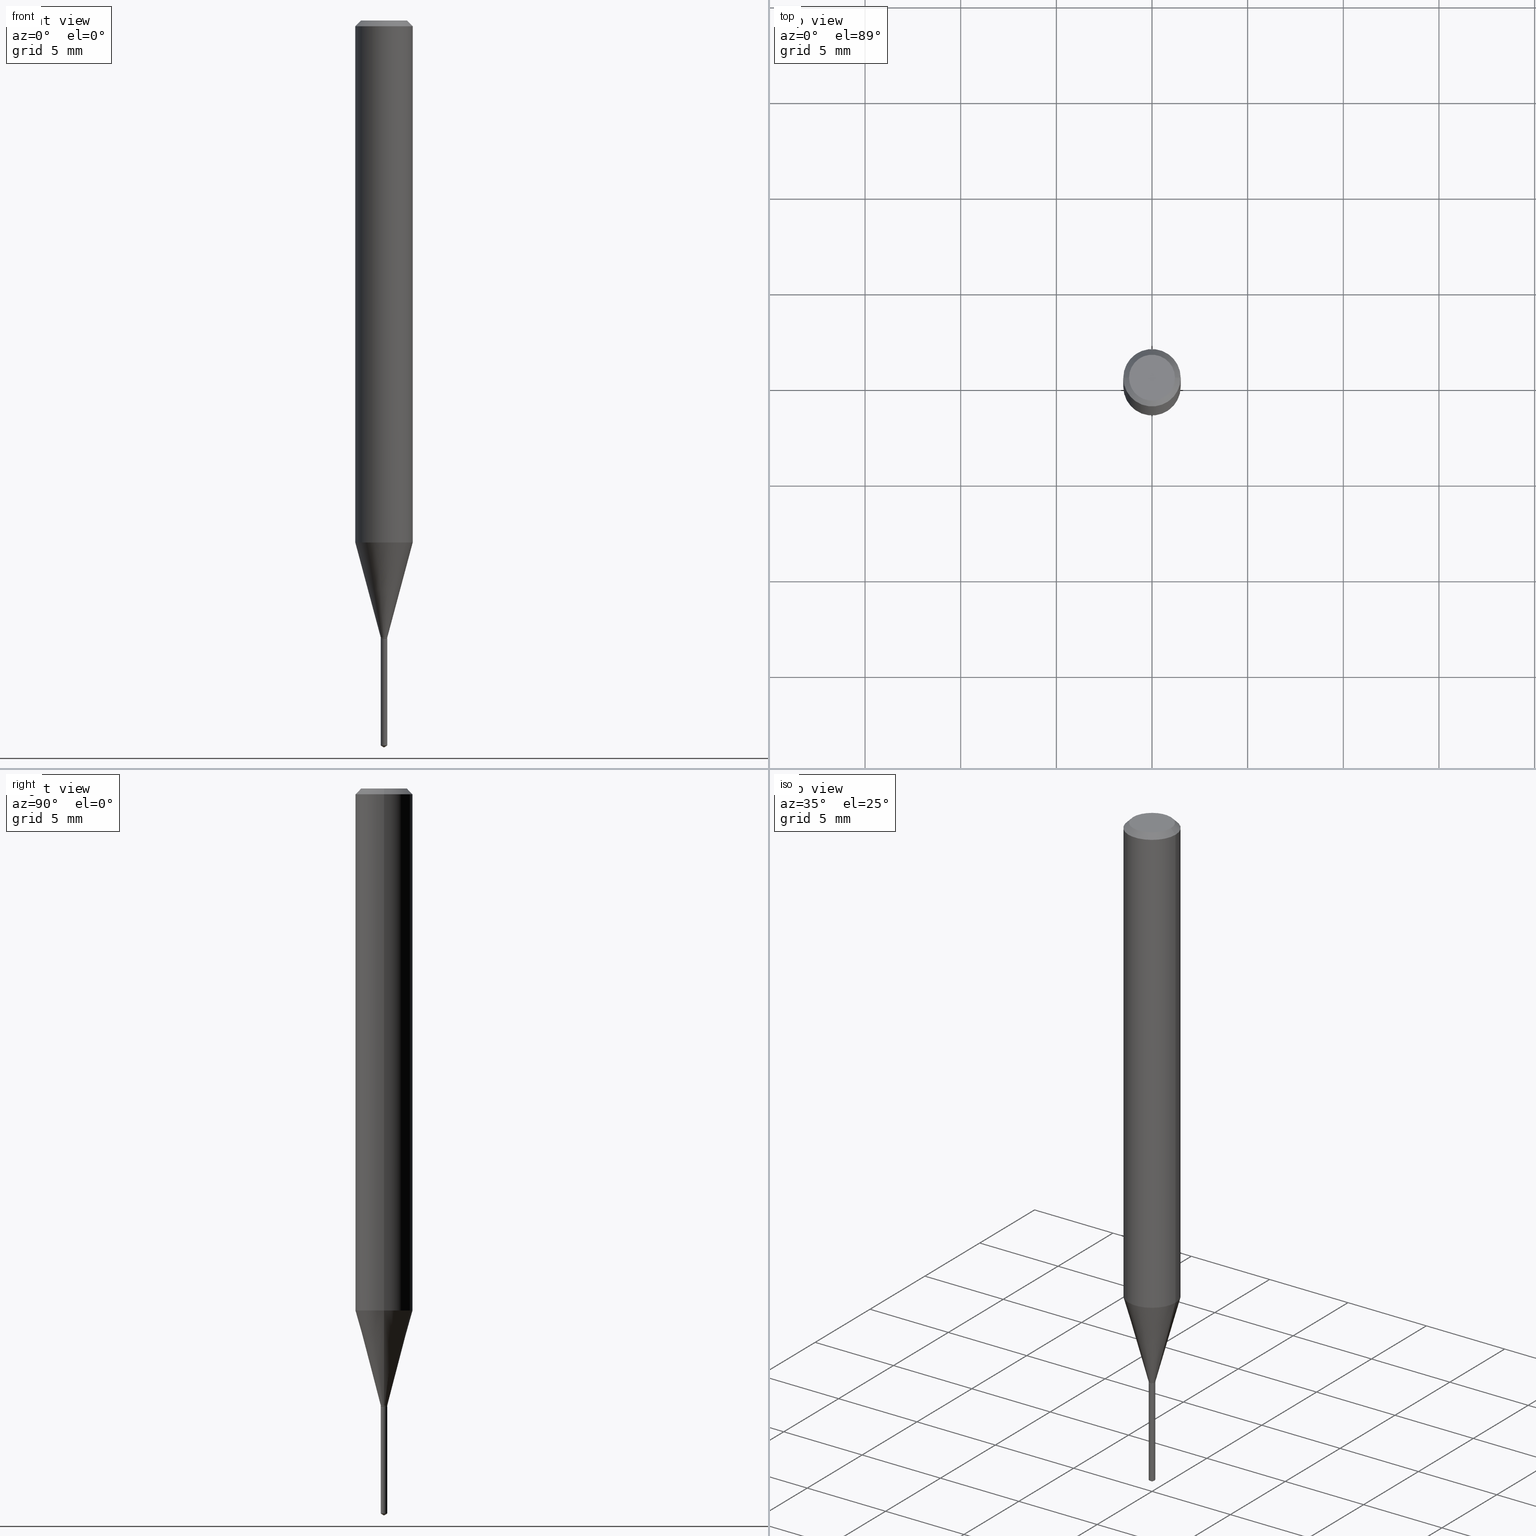
[diagram: canonical four-view strip — front | top / right | iso, engineering-drawing reading convention]
A machine part, canonical four-view strip (front | top / right | iso — engineering-drawing reading convention). The complete STEP part file that produces these views, byte-faithful:
ISO-10303-21;
HEADER;
FILE_DESCRIPTION (( 'STEP AP203' ),
    '1' );
FILE_NAME ('07753.STEP',
    '2024-04-24T02:18:31',
    ( '' ),
    ( '' ),
    'SwSTEP 2.0',
    'SolidWorks 2023',
    '' );
FILE_SCHEMA (( 'CONFIG_CONTROL_DESIGN' ));
ENDSEC;

DATA;
#1 = EDGE_LOOP ( 'NONE', ( #457, #26, #36 ) ) ;
#2 = DIRECTION ( 'NONE',  ( 1.000000000000000000, -6.982962677686266711E-15, 4.876176775795936353E-29 ) ) ;
#3 = CARTESIAN_POINT ( 'NONE',  ( 3.109902680825639250E-29, -4.440116818606829671E-15, -1.271700000000000275 ) ) ;
#4 = CARTESIAN_POINT ( 'NONE',  ( -0.04724000000000000421, 3.504923541997677355E-16, -3.380025165670481712E-19 ) ) ;
#5 = APPROVAL ( #239, 'UNSPECIFIED' ) ;
#6 = CLOSED_SHELL ( 'NONE', ( #323, #123, #302, #236, #9 ) ) ;
#7 = DIRECTION ( 'NONE',  ( -2.445468806185136597E-29, 3.491481338843145583E-15, 1.000000000000000000 ) ) ;
#8 = FACE_OUTER_BOUND ( 'NONE', #127, .T. ) ;
#9 = ADVANCED_FACE ( 'NONE', ( #180 ), #264, .F. ) ;
#10 = EDGE_LOOP ( 'NONE', ( #118, #300, #185, #230 ) ) ;
#11 = PERSON ( 'UNSPECIFIED', 'UNSPECIFIED', 'UNSPECIFIED', ('UNSPECIFIED'), ('UNSPECIFIED'), ('UNSPECIFIED') ) ;
#12 = DIRECTION ( 'NONE',  ( -6.982962677686265922E-15, -1.000000000000000000, 0.000000000000000000 ) ) ;
#13 = VECTOR ( 'NONE', #115, 39.37007874015748143 ) ;
#14 = VERTEX_POINT ( 'NONE', #64 ) ;
#15 = DIRECTION ( 'NONE',  ( -2.438088387897960049E-29, 3.491481338843145188E-15, 1.000000000000000000 ) ) ;
#16 = ORIENTED_EDGE ( 'NONE', *, *, #360, .F. ) ;
#17 =( NAMED_UNIT ( * ) SI_UNIT ( $, .STERADIAN. ) SOLID_ANGLE_UNIT ( ) );
#18 = LINE ( 'NONE', #356, #466 ) ;
#19 = ORIENTED_EDGE ( 'NONE', *, *, #462, .T. ) ;
#20 = PLANE ( 'NONE',  #371 ) ;
#21 = CARTESIAN_POINT ( 'NONE',  ( 0.006199999999999999782, -4.483411187208483748E-15, -1.271700000000000275 ) ) ;
#22 = CONICAL_SURFACE ( 'NONE', #47, 65.52281426576747947, 1.029744258676648094 ) ;
#23 = APPROVAL_PERSON_ORGANIZATION ( #28, #5, #352 ) ;
#24 = CARTESIAN_POINT ( 'NONE',  ( 2.888098660104663766E-31, -4.123439461173779647E-17, -0.01181000000000007044 ) ) ;
#25 = EDGE_CURVE ( 'NONE', #489, #381, #96, .T. ) ;
#26 = ORIENTED_EDGE ( 'NONE', *, *, #142, .T. ) ;
#27 = CARTESIAN_POINT ( 'NONE',  ( 4.760636329596319888E-17, 0.006699999999994791719, -1.492074233852515253 ) ) ;
#28 = PERSON_AND_ORGANIZATION ( #11, #487 ) ;
#29 = AXIS2_PLACEMENT_3D ( 'NONE', #423, #234, #203 ) ;
#30 = EDGE_CURVE ( 'NONE', #318, #131, #321, .T. ) ;
#31 = FACE_OUTER_BOUND ( 'NONE', #178, .T. ) ;
#32 = VECTOR ( 'NONE', #186, 39.37007874015747433 ) ;
#33 = AXIS2_PLACEMENT_3D ( 'NONE', #281, #112, #439 ) ;
#34 = CARTESIAN_POINT ( 'NONE',  ( -0.006700000000000000226, -4.388146103637346948E-15, -1.269699999999999829 ) ) ;
#35 = EDGE_CURVE ( 'NONE', #231, #297, #266, .T. ) ;
#36 = ORIENTED_EDGE ( 'NONE', *, *, #451, .F. ) ;
#37 = LINE ( 'NONE', #153, #32 ) ;
#38 = ORIENTED_EDGE ( 'NONE', *, *, #420, .T. ) ;
#39 = CYLINDRICAL_SURFACE ( 'NONE', #194, 0.006700000000000000226 ) ;
#40 = CARTESIAN_POINT ( 'NONE',  ( -0.05905000000000006771, 4.195754854663396409E-16, -2.904631170795525045E-30 ) ) ;
#41 = DIRECTION ( 'NONE',  ( -6.982962677686265922E-15, -1.000000000000000000, 0.000000000000000000 ) ) ;
#42 = VECTOR ( 'NONE', #320, 39.37007874015748143 ) ;
#43 = CARTESIAN_POINT ( 'NONE',  ( 3.109902680825638129E-29, -4.440116818606828093E-15, -1.271700000000000053 ) ) ;
#44 = CC_DESIGN_PERSON_AND_ORGANIZATION_ASSIGNMENT ( #388, #483, ( #121 ) ) ;
#45 = CARTESIAN_POINT ( 'NONE',  ( 0.006700000000000000226, -4.479919705869639163E-15, -1.269699999999999829 ) ) ;
#46 = ORIENTED_EDGE ( 'NONE', *, *, #85, .T. ) ;
#47 = AXIS2_PLACEMENT_3D ( 'NONE', #240, #71, #441 ) ;
#48 = CYLINDRICAL_SURFACE ( 'NONE', #277, 0.006700000000000000226 ) ;
#49 = CONICAL_SURFACE ( 'NONE', #418, 0.006700000000000000226, 0.2617993877991500740 ) ;
#50 = VERTEX_POINT ( 'NONE', #101 ) ;
#51 = EDGE_CURVE ( 'NONE', #131, #192, #169, .T. ) ;
#52 = DIRECTION ( 'NONE',  ( -2.445468806185136597E-29, 3.491481338843145583E-15, 1.000000000000000000 ) ) ;
#53 = EDGE_LOOP ( 'NONE', ( #346, #333, #465, #406 ) ) ;
#54 = CARTESIAN_POINT ( 'NONE',  ( -9.261893952565592859E-28, 1.322372839174148049E-13, 37.87397874015748300 ) ) ;
#55 = EDGE_CURVE ( 'NONE', #470, #381, #386, .T. ) ;
#56 = DESIGN_CONTEXT ( 'detailed design', #426, 'design' ) ;
#57 = VERTEX_POINT ( 'NONE', #106 ) ;
#58 = AXIS2_PLACEMENT_3D ( 'NONE', #154, #89, #366 ) ;
#59 = CARTESIAN_POINT ( 'NONE',  ( 4.132873053354867254E-48, -5.900647395337818946E-34, -1.690012582823346072E-19 ) ) ;
#60 = CARTESIAN_POINT ( 'NONE',  ( 0.000000000000000000, 0.000000000000000000, 0.000000000000000000 ) ) ;
#61 = DIRECTION ( 'NONE',  ( 1.000000000000000000, -6.982962677686318775E-15, 0.000000000000000000 ) ) ;
#62 = APPROVAL_DATE_TIME ( #246, #206 ) ;
#63 = CYLINDRICAL_SURFACE ( 'NONE', #145, 0.006700000000000000226 ) ;
#64 = CARTESIAN_POINT ( 'NONE',  ( -4.678584994046688592E-17, -0.006700000000004440251, -1.271700000000000053 ) ) ;
#65 = CALENDAR_DATE ( 2024, 23, 4 ) ;
#66 = EDGE_CURVE ( 'NONE', #258, #57, #78, .T. ) ;
#67 = CALENDAR_DATE ( 2024, 23, 4 ) ;
#68 = ORIENTED_EDGE ( 'NONE', *, *, #51, .T. ) ;
#69 = VECTOR ( 'NONE', #308, 39.37007874015748854 ) ;
#70 = VECTOR ( 'NONE', #189, 39.37007874015748143 ) ;
#71 = DIRECTION ( 'NONE',  ( -2.445451076271118923E-29, 3.491506729089142946E-15, 1.000000000000000000 ) ) ;
#72 = DATE_TIME_ROLE ( 'classification_date' ) ;
#73 = DIRECTION ( 'NONE',  ( -2.445468806185136597E-29, 3.491481338843145583E-15, 1.000000000000000000 ) ) ;
#74 = CARTESIAN_POINT ( 'NONE',  ( 2.888098660104663766E-31, -4.123439461173779647E-17, -0.01181000000000007044 ) ) ;
#75 = PERSON_AND_ORGANIZATION ( #11, #487 ) ;
#76 = ORIENTED_EDGE ( 'NONE', *, *, #85, .F. ) ;
#77 = CARTESIAN_POINT ( 'NONE',  ( 0.006700000000000000226, -4.678584994049799046E-17, 3.267038439783277072E-31 ) ) ;
#78 = CIRCLE ( 'NONE', #29, 0.05905000000000013016 ) ;
#79 = DIRECTION ( 'NONE',  ( -2.445451076271118923E-29, 3.491506729089142946E-15, 1.000000000000000000 ) ) ;
#80 = CARTESIAN_POINT ( 'NONE',  ( 0.006700000000000000226, -4.485156927877905251E-15, -1.271200000000000108 ) ) ;
#81 = ADVANCED_FACE ( 'NONE', ( #477 ), #347, .T. ) ;
#82 = EDGE_LOOP ( 'NONE', ( #225, #433, #95, #443 ) ) ;
#83 = EDGE_CURVE ( 'NONE', #297, #287, #261, .T. ) ;
#84 = CARTESIAN_POINT ( 'NONE',  ( 3.109902680825638129E-29, -4.440116818606828093E-15, -1.271700000000000053 ) ) ;
#85 = EDGE_CURVE ( 'NONE', #381, #57, #100, .T. ) ;
#86 = CIRCLE ( 'NONE', #357, 0.006700000000000000226 ) ;
#87 = FACE_OUTER_BOUND ( 'NONE', #331, .T. ) ;
#88 = ORIENTED_EDGE ( 'NONE', *, *, #417, .T. ) ;
#89 = DIRECTION ( 'NONE',  ( -2.445468806185136597E-29, 3.491481338843145583E-15, 1.000000000000000000 ) ) ;
#90 = ORIENTED_EDGE ( 'NONE', *, *, #210, .T. ) ;
#91 = VECTOR ( 'NONE', #345, 39.37007874015748854 ) ;
#92 = AXIS2_PLACEMENT_3D ( 'NONE', #276, #79, #216 ) ;
#93 = CC_DESIGN_DATE_AND_TIME_ASSIGNMENT ( #171, #72, ( #121 ) ) ;
#94 = EDGE_LOOP ( 'NONE', ( #111, #88 ) ) ;
#95 = ORIENTED_EDGE ( 'NONE', *, *, #172, .T. ) ;
#96 = LINE ( 'NONE', #272, #227 ) ;
#97 = PERSON_AND_ORGANIZATION ( #11, #487 ) ;
#98 = PRODUCT_DEFINITION_SHAPE ( 'NONE', 'NONE',  #288 ) ;
#99 = AXIS2_PLACEMENT_3D ( 'NONE', #447, #328, #2 ) ;
#100 = LINE ( 'NONE', #167, #207 ) ;
#101 = CARTESIAN_POINT ( 'NONE',  ( -4.678584994046150564E-17, -0.006700000000005211336, -1.492074233852515253 ) ) ;
#102 = PERSON_AND_ORGANIZATION_ROLE ( 'design_owner' ) ;
#103 = ORIENTED_EDGE ( 'NONE', *, *, #166, .T. ) ;
#104 = LINE ( 'NONE', #77, #137 ) ;
#105 = CARTESIAN_POINT ( 'NONE',  ( 3.105011743213267483E-29, -4.433133855929141290E-15, -1.269699999999999829 ) ) ;
#106 = CARTESIAN_POINT ( 'NONE',  ( -0.05905000000000013710, -3.331417676437672997E-15, -1.074327140223769073 ) ) ;
#107 = AXIS2_PLACEMENT_3D ( 'NONE', #304, #52, #196 ) ;
#108 = CARTESIAN_POINT ( 'NONE',  ( 3.105011743213267483E-29, -4.433133855929141290E-15, -1.269699999999999829 ) ) ;
#109 = DIRECTION ( 'NONE',  ( -2.445468806185136597E-29, 3.491481338843145583E-15, 1.000000000000000000 ) ) ;
#110 = APPROVAL_DATE_TIME ( #280, #5 ) ;
#111 = ORIENTED_EDGE ( 'NONE', *, *, #309, .T. ) ;
#112 = DIRECTION ( 'NONE',  ( 2.445468806185136597E-29, -3.491481338843145583E-15, -1.000000000000000000 ) ) ;
#113 = CARTESIAN_POINT ( 'NONE',  ( 3.658639355209220542E-29, -5.223643217390265926E-15, -1.496099999999999985 ) ) ;
#114 = ORIENTED_EDGE ( 'NONE', *, *, #223, .F. ) ;
#115 = DIRECTION ( 'NONE',  ( 6.090539988449756347E-15, 0.8571673007021107793, 0.5150380749100567090 ) ) ;
#116 = DIRECTION ( 'NONE',  ( -2.445451076271118643E-29, 3.491506729089142552E-15, 1.000000000000000000 ) ) ;
#117 = AXIS2_PLACEMENT_3D ( 'NONE', #84, #254, #296 ) ;
#118 = ORIENTED_EDGE ( 'NONE', *, *, #181, .F. ) ;
#119 = CARTESIAN_POINT ( 'NONE',  ( 0.000000000000000000, 0.000000000000000000, 0.000000000000000000 ) ) ;
#120 = AXIS2_PLACEMENT_3D ( 'NONE', #405, #213, #484 ) ;
#121 = SECURITY_CLASSIFICATION ( '', '', #125 ) ;
#122 = EDGE_LOOP ( 'NONE', ( #479, #390, #338 ) ) ;
#123 = ADVANCED_FACE ( 'NONE', ( #170 ), #151, .T. ) ;
#124 = EDGE_LOOP ( 'NONE', ( #303, #155 ) ) ;
#125 = SECURITY_CLASSIFICATION_LEVEL ( 'unclassified' ) ;
#126 =( LENGTH_UNIT ( ) NAMED_UNIT ( * ) SI_UNIT ( $, .METRE. ) );
#127 = EDGE_LOOP ( 'NONE', ( #269, #336 ) ) ;
#128 = CIRCLE ( 'NONE', #201, 0.006700000000000000226 ) ;
#129 = VERTEX_POINT ( 'NONE', #27 ) ;
#130 = ADVANCED_FACE ( 'NONE', ( #31 ), #173, .T. ) ;
#131 = VERTEX_POINT ( 'NONE', #139 ) ;
#132 = CC_DESIGN_PERSON_AND_ORGANIZATION_ASSIGNMENT ( #245, #102, ( #464 ) ) ;
#133 = DIRECTION ( 'NONE',  ( -2.445468806185136597E-29, 3.491481338843145583E-15, 1.000000000000000000 ) ) ;
#134 = ORIENTED_EDGE ( 'NONE', *, *, #35, .F. ) ;
#135 = VECTOR ( 'NONE', #212, 39.37007874015748143 ) ;
#136 = CARTESIAN_POINT ( 'NONE',  ( 0.05904999999999999832, -4.463468013801466955E-16, -0.01181000000000007044 ) ) ;
#137 = VECTOR ( 'NONE', #391, 39.37007874015748143 ) ;
#138 = PERSON_AND_ORGANIZATION ( #11, #487 ) ;
#139 = CARTESIAN_POINT ( 'NONE',  ( 0.006199999999999999782, -4.483411187208483748E-15, -1.271700000000000275 ) ) ;
#140 = APPROVAL_STATUS ( 'not_yet_approved' ) ;
#141 = VERTEX_POINT ( 'NONE', #392 ) ;
#142 = EDGE_CURVE ( 'NONE', #255, #50, #208, .T. ) ;
#143 = CARTESIAN_POINT ( 'NONE',  ( 3.109902680825638129E-29, -4.440116818606828093E-15, -1.271700000000000053 ) ) ;
#144 = APPLICATION_PROTOCOL_DEFINITION ( 'international standard', 'config_control_design', 1994, #179 ) ;
#145 = AXIS2_PLACEMENT_3D ( 'NONE', #60, #268, #235 ) ;
#146 = DIRECTION ( 'NONE',  ( 0.000000000000000000, 0.000000000000000000, 1.000000000000000000 ) ) ;
#147 = LINE ( 'NONE', #397, #42 ) ;
#148 = CARTESIAN_POINT ( 'NONE',  ( -0.05904999999999999832, -1.476538292791535222E-15, -0.01181000000000007044 ) ) ;
#149 = ORIENTED_EDGE ( 'NONE', *, *, #377, .F. ) ;
#150 = DIRECTION ( 'NONE',  ( -2.445468806185136597E-29, 3.491481338843145583E-15, 1.000000000000000000 ) ) ;
#151 = CONICAL_SURFACE ( 'NONE', #370, 65.52281426576747947, 1.029744258676648094 ) ;
#152 = CIRCLE ( 'NONE', #243, 0.006700000000000000226 ) ;
#153 = CARTESIAN_POINT ( 'NONE',  ( 0.006700000000000000226, -4.479919705869639163E-15, -1.269699999999999829 ) ) ;
#154 = CARTESIAN_POINT ( 'NONE',  ( 3.109902680825639250E-29, -4.440116818606829671E-15, -1.271700000000000275 ) ) ;
#155 = ORIENTED_EDGE ( 'NONE', *, *, #30, .F. ) ;
#156 = CYLINDRICAL_SURFACE ( 'NONE', #209, 0.05905000000000006771 ) ;
#157 = PRODUCT_DEFINITION_FORMATION_WITH_SPECIFIED_SOURCE ( 'ANY', '', #464, .NOT_KNOWN. ) ;
#158 = ORIENTED_EDGE ( 'NONE', *, *, #247, .T. ) ;
#159 = PERSON_AND_ORGANIZATION_ROLE ( 'creator' ) ;
#160 = ORIENTED_EDGE ( 'NONE', *, *, #83, .F. ) ;
#161 = EDGE_CURVE ( 'NONE', #131, #318, #424, .T. ) ;
#162 = ORIENTED_EDGE ( 'NONE', *, *, #384, .T. ) ;
#163 = CARTESIAN_POINT ( 'NONE',  ( -3.601823997254845853E-28, -6.047384413381397898E-14, -1.271700000000000053 ) ) ;
#164 = CIRCLE ( 'NONE', #184, 0.05904999999999999832 ) ;
#166 = EDGE_CURVE ( 'NONE', #192, #489, #128, .T. ) ;
#165 = APPROVAL_PERSON_ORGANIZATION ( #75, #206, #324 ) ;
#167 = CARTESIAN_POINT ( 'NONE',  ( -0.006700000000000000226, -4.385527492633215087E-15, -1.269699999999999829 ) ) ;
#168 = COORDINATED_UNIVERSAL_TIME_OFFSET ( 5, 0, .BEHIND. ) ;
#169 = LINE ( 'NONE', #21, #91 ) ;
#170 = FACE_OUTER_BOUND ( 'NONE', #122, .T. ) ;
#171 = DATE_AND_TIME ( #65, #221 ) ;
#172 = EDGE_CURVE ( 'NONE', #50, #14, #448, .T. ) ;
#173 = CONICAL_SURFACE ( 'NONE', #416, 0.006700000000000000226, 0.2617993877991500740 ) ;
#174 = DIRECTION ( 'NONE',  ( -2.445468806185136597E-29, 3.491481338843145583E-15, 1.000000000000000000 ) ) ;
#175 = AXIS2_PLACEMENT_3D ( 'NONE', #293, #374, #294 ) ;
#176 = APPLICATION_PROTOCOL_DEFINITION ( 'international standard', 'config_control_design', 1994, #426 ) ;
#177 = CC_DESIGN_PERSON_AND_ORGANIZATION_ASSIGNMENT ( #97, #301, ( #157 ) ) ;
#178 = EDGE_LOOP ( 'NONE', ( #76, #341, #90, #355 ) ) ;
#179 = APPLICATION_CONTEXT ( 'configuration controlled 3d designs of mechanical parts and assemblies' ) ;
#180 = FACE_OUTER_BOUND ( 'NONE', #94, .T. ) ;
#181 = EDGE_CURVE ( 'NONE', #231, #461, #267, .T. ) ;
#182 = COORDINATED_UNIVERSAL_TIME_OFFSET ( 5, 0, .BEHIND. ) ;
#183 = CARTESIAN_POINT ( 'NONE',  ( 0.05905000000000013710, -4.163337108021387805E-15, -1.074327140223769073 ) ) ;
#184 = AXIS2_PLACEMENT_3D ( 'NONE', #359, #217, #488 ) ;
#185 = ORIENTED_EDGE ( 'NONE', *, *, #83, .T. ) ;
#186 = DIRECTION ( 'NONE',  ( 0.2588190451025213501, 1.565188264969621968E-15, 0.9659258262890682012 ) ) ;
#187 = VECTOR ( 'NONE', #116, 39.37007874015748143 ) ;
#188 = AXIS2_PLACEMENT_3D ( 'NONE', #476, #284, #271 ) ;
#189 = DIRECTION ( 'NONE',  ( -0.7071067811865453523, 2.468850131082234184E-15, -0.7071067811865496822 ) ) ;
#190 = EDGE_CURVE ( 'NONE', #381, #470, #248, .T. ) ;
#191 = ORIENTED_EDGE ( 'NONE', *, *, #427, .F. ) ;
#192 = VERTEX_POINT ( 'NONE', #80 ) ;
#193 = AXIS2_PLACEMENT_3D ( 'NONE', #143, #319, #344 ) ;
#194 = AXIS2_PLACEMENT_3D ( 'NONE', #119, #408, #222 ) ;
#195 = ORIENTED_EDGE ( 'NONE', *, *, #30, .T. ) ;
#196 = DIRECTION ( 'NONE',  ( 1.000000000000000000, -6.982962677686318775E-15, 0.000000000000000000 ) ) ;
#197 = EDGE_LOOP ( 'NONE', ( #149, #195, #68, #16 ) ) ;
#198 = EDGE_LOOP ( 'NONE', ( #103, #262, #305, #191 ) ) ;
#199 =( NAMED_UNIT ( * ) PLANE_ANGLE_UNIT ( ) SI_UNIT ( $, .RADIAN. ) );
#200 = FACE_OUTER_BOUND ( 'NONE', #198, .T. ) ;
#201 = AXIS2_PLACEMENT_3D ( 'NONE', #368, #7, #402 ) ;
#202 = CARTESIAN_POINT ( 'NONE',  ( 3.105011743213267483E-29, -4.433133855929141290E-15, -1.269699999999999829 ) ) ;
#203 = DIRECTION ( 'NONE',  ( 1.000000000000000000, -6.982962677686265133E-15, 0.000000000000000000 ) ) ;
#204 = EDGE_CURVE ( 'NONE', #287, #297, #164, .T. ) ;
#205 = DIRECTION ( 'NONE',  ( -2.445468806185136877E-29, 3.491481338843145188E-15, 1.000000000000000000 ) ) ;
#206 = APPROVAL ( #140, 'UNSPECIFIED' ) ;
#207 = VECTOR ( 'NONE', #311, 39.37007874015747433 ) ;
#208 = LINE ( 'NONE', #242, #69 ) ;
#209 = AXIS2_PLACEMENT_3D ( 'NONE', #469, #133, #389 ) ;
#210 = EDGE_CURVE ( 'NONE', #470, #258, #37, .T. ) ;
#211 = DIRECTION ( 'NONE',  ( 2.445468806185136597E-29, -3.491481338843145583E-15, -1.000000000000000000 ) ) ;
#212 = DIRECTION ( 'NONE',  ( -2.445468806185136877E-29, 3.491481338843145188E-15, 1.000000000000000000 ) ) ;
#213 = DIRECTION ( 'NONE',  ( -2.445468806185136597E-29, 3.491481338843145583E-15, 1.000000000000000000 ) ) ;
#214 = AXIS2_PLACEMENT_3D ( 'NONE', #59, #273, #340 ) ;
#215 = DATE_AND_TIME ( #67, #450 ) ;
#216 = DIRECTION ( 'NONE',  ( -6.982962677686265922E-15, -1.000000000000000000, 0.000000000000000000 ) ) ;
#217 = DIRECTION ( 'NONE',  ( -2.445468806185136597E-29, 3.491481338843145583E-15, 1.000000000000000000 ) ) ;
#218 = ORIENTED_EDGE ( 'NONE', *, *, #172, .F. ) ;
#219 = PRODUCT_RELATED_PRODUCT_CATEGORY ( 'detail', '', ( #464 ) ) ;
#220 = CARTESIAN_POINT ( 'NONE',  ( 3.648817088182694446E-29, -5.209554939020750193E-15, -1.492074233852515253 ) ) ;
#221 = LOCAL_TIME ( 22, 18, 31.00000000000000000, #350 ) ;
#222 = DIRECTION ( 'NONE',  ( 1.000000000000000000, -6.982962677686266711E-15, 4.876176775795935793E-29 ) ) ;
#223 = EDGE_CURVE ( 'NONE', #461, #231, #456, .T. ) ;
#224 = ORIENTED_EDGE ( 'NONE', *, *, #382, .F. ) ;
#225 = ORIENTED_EDGE ( 'NONE', *, *, #420, .F. ) ;
#226 = ADVANCED_FACE ( 'NONE', ( #398 ), #438, .T. ) ;
#227 = VECTOR ( 'NONE', #205, 39.37007874015748143 ) ;
#228 = CARTESIAN_POINT ( 'NONE',  ( -0.006700000000000000226, -4.388146103637346948E-15, -1.271200000000000108 ) ) ;
#229 = APPROVAL_PERSON_ORGANIZATION ( #361, #251, #342 ) ;
#230 = ORIENTED_EDGE ( 'NONE', *, *, #471, .F. ) ;
#231 = VERTEX_POINT ( 'NONE', #460 ) ;
#232 = CARTESIAN_POINT ( 'NONE',  ( 3.109902680825639250E-29, -4.440116818606829671E-15, -1.271700000000000275 ) ) ;
#233 = AXIS2_PLACEMENT_3D ( 'NONE', #442, #109, #244 ) ;
#234 = DIRECTION ( 'NONE',  ( -2.445468806185136597E-29, 3.491481338843145583E-15, 1.000000000000000000 ) ) ;
#235 = DIRECTION ( 'NONE',  ( 1.000000000000000000, -6.982962677686266711E-15, 4.876176775795935793E-29 ) ) ;
#236 = ADVANCED_FACE ( 'NONE', ( #257 ), #48, .T. ) ;
#237 = ORIENTED_EDGE ( 'NONE', *, *, #66, .T. ) ;
#238 = DIRECTION ( 'NONE',  ( -2.445468806185136597E-29, 3.491481338843145583E-15, 1.000000000000000000 ) ) ;
#239 = APPROVAL_STATUS ( 'not_yet_approved' ) ;
#240 = CARTESIAN_POINT ( 'NONE',  ( -9.261893952565592859E-28, 1.322372839174148049E-13, 37.87397874015748300 ) ) ;
#241 = AXIS2_PLACEMENT_3D ( 'NONE', #468, #481, #343 ) ;
#242 = CARTESIAN_POINT ( 'NONE',  ( 3.658639355209220542E-29, -5.223643217390265926E-15, -1.496099999999999985 ) ) ;
#243 = AXIS2_PLACEMENT_3D ( 'NONE', #220, #256, #12 ) ;
#244 = DIRECTION ( 'NONE',  ( 1.000000000000000000, -6.982962677686266711E-15, 4.876185090822587894E-29 ) ) ;
#245 = PERSON_AND_ORGANIZATION ( #11, #487 ) ;
#246 = DATE_AND_TIME ( #445, #358 ) ;
#247 = EDGE_CURVE ( 'NONE', #57, #287, #250, .T. ) ;
#248 = CIRCLE ( 'NONE', #120, 0.006700000000000000226 ) ;
#249 = EDGE_LOOP ( 'NONE', ( #365, #46, #436, #259 ) ) ;
#250 = LINE ( 'NONE', #40, #135 ) ;
#251 = APPROVAL ( #286, 'UNSPECIFIED' ) ;
#252 = MANIFOLD_SOLID_BREP ( 'Body-Move/Copy2[1]', #6 ) ;
#253 = LOCAL_TIME ( 22, 18, 31.00000000000000000, #182 ) ;
#254 = DIRECTION ( 'NONE',  ( -2.445451076271118923E-29, 3.491506729089142946E-15, 1.000000000000000000 ) ) ;
#255 = VERTEX_POINT ( 'NONE', #113 ) ;
#256 = DIRECTION ( 'NONE',  ( -2.445451076271118923E-29, 3.491506729089142946E-15, 1.000000000000000000 ) ) ;
#257 = FACE_OUTER_BOUND ( 'NONE', #82, .T. ) ;
#258 = VERTEX_POINT ( 'NONE', #183 ) ;
#259 = ORIENTED_EDGE ( 'NONE', *, *, #210, .F. ) ;
#260 = MANIFOLD_SOLID_BREP ( 'Body-Move/Copy2[2]', #332 ) ;
#261 = CIRCLE ( 'NONE', #291, 0.05904999999999999832 ) ;
#262 = ORIENTED_EDGE ( 'NONE', *, *, #25, .T. ) ;
#263 = DIMENSIONAL_EXPONENTS ( 1.000000000000000000, 0.000000000000000000, 0.000000000000000000, 0.000000000000000000, 0.000000000000000000, 0.000000000000000000, 0.000000000000000000 ) ;
#264 = PLANE ( 'NONE',  #193 ) ;
#265 = APPROVAL_DATE_TIME ( #334, #251 ) ;
#266 = LINE ( 'NONE', #136, #473 ) ;
#267 = CIRCLE ( 'NONE', #306, 0.04724000000000000421 ) ;
#268 = DIRECTION ( 'NONE',  ( -2.445468806185136597E-29, 3.491481338843145583E-15, 1.000000000000000000 ) ) ;
#269 = ORIENTED_EDGE ( 'NONE', *, *, #223, .T. ) ;
#270 = PERSON_AND_ORGANIZATION_ROLE ( 'creator' ) ;
#271 = DIRECTION ( 'NONE',  ( -6.982962677686265922E-15, -1.000000000000000000, 0.000000000000000000 ) ) ;
#272 = CARTESIAN_POINT ( 'NONE',  ( -0.006700000000000000226, 4.760636329592671406E-17, -3.295686510470787325E-31 ) ) ;
#273 = DIRECTION ( 'NONE',  ( 2.438088387897960049E-29, -3.491481338843145188E-15, -1.000000000000000000 ) ) ;
#274 = CARTESIAN_POINT ( 'NONE',  ( 4.760636329595780011E-17, 0.006699999999995560201, -1.271700000000000053 ) ) ;
#275 = DIRECTION ( 'NONE',  ( -2.445451076271118923E-29, 3.491506729089142946E-15, 1.000000000000000000 ) ) ;
#276 = CARTESIAN_POINT ( 'NONE',  ( 3.109902680825638129E-29, -4.440116818606828093E-15, -1.271700000000000053 ) ) ;
#277 = AXIS2_PLACEMENT_3D ( 'NONE', #411, #335, #395 ) ;
#278 = UNCERTAINTY_MEASURE_WITH_UNIT (LENGTH_MEASURE( 1.000000000000000082E-05 ), #467, 'distance_accuracy_value', 'NONE');
#279 = CC_DESIGN_SECURITY_CLASSIFICATION ( #121, ( #157 ) ) ;
#280 = DATE_AND_TIME ( #429, #253 ) ;
#281 = CARTESIAN_POINT ( 'NONE',  ( 2.888098660104663766E-31, -4.123439461173779647E-17, -0.01181000000000007044 ) ) ;
#282 = DIRECTION ( 'NONE',  ( 1.000000000000000000, -6.982962677686239100E-15, 0.000000000000000000 ) ) ;
#283 = COORDINATED_UNIVERSAL_TIME_OFFSET ( 5, 0, .BEHIND. ) ;
#284 = DIRECTION ( 'NONE',  ( -2.445451076271118923E-29, 3.491506729089142946E-15, 1.000000000000000000 ) ) ;
#285 = FACE_OUTER_BOUND ( 'NONE', #375, .T. ) ;
#286 = APPROVAL_STATUS ( 'not_yet_approved' ) ;
#287 = VERTEX_POINT ( 'NONE', #148 ) ;
#288 = PRODUCT_DEFINITION ( 'UNKNOWN', '', #157, #56 ) ;
#289 = CARTESIAN_POINT ( 'NONE',  ( 0.05904999999999999832, -4.535783407291118600E-16, -0.01181000000000007044 ) ) ;
#290 = DIRECTION ( 'NONE',  ( 1.000000000000000000, -6.982962677686266711E-15, 4.876185090822587894E-29 ) ) ;
#291 = AXIS2_PLACEMENT_3D ( 'NONE', #24, #387, #432 ) ;
#292 = CIRCLE ( 'NONE', #188, 0.006700000000000000226 ) ;
#293 = CARTESIAN_POINT ( 'NONE',  ( 2.627233509055312695E-29, -3.750993161904012885E-15, -1.074327140223769073 ) ) ;
#294 = DIRECTION ( 'NONE',  ( 1.000000000000000000, -6.982962677686265133E-15, 0.000000000000000000 ) ) ;
#295 = ADVANCED_FACE ( 'NONE', ( #285 ), #435, .T. ) ;
#296 = DIRECTION ( 'NONE',  ( -6.982962677686265922E-15, -1.000000000000000000, 0.000000000000000000 ) ) ;
#297 = VERTEX_POINT ( 'NONE', #289 ) ;
#298 = CIRCLE ( 'NONE', #175, 0.05905000000000013016 ) ;
#299 = FACE_OUTER_BOUND ( 'NONE', #362, .T. ) ;
#300 = ORIENTED_EDGE ( 'NONE', *, *, #35, .T. ) ;
#301 = PERSON_AND_ORGANIZATION_ROLE ( 'design_supplier' ) ;
#302 = ADVANCED_FACE ( 'NONE', ( #367 ), #22, .T. ) ;
#303 = ORIENTED_EDGE ( 'NONE', *, *, #161, .F. ) ;
#304 = CARTESIAN_POINT ( 'NONE',  ( 3.108679946422545888E-29, -4.438371077937407378E-15, -1.271200000000000108 ) ) ;
#305 = ORIENTED_EDGE ( 'NONE', *, *, #55, .F. ) ;
#306 = AXIS2_PLACEMENT_3D ( 'NONE', #326, #150, #290 ) ;
#307 = CONICAL_SURFACE ( 'NONE', #33, 0.05904999999999999832, 0.7853981633974452814 ) ;
#308 = DIRECTION ( 'NONE',  ( -5.985567269335919980E-15, -0.8571673007021071156, 0.5150380749100625932 ) ) ;
#309 = EDGE_CURVE ( 'NONE', #14, #141, #86, .T. ) ;
#310 = CALENDAR_DATE ( 2024, 23, 4 ) ;
#311 = DIRECTION ( 'NONE',  ( -0.2588190451025213501, 5.211531920934551042E-15, 0.9659258262890682012 ) ) ;
#312 = ADVANCED_FACE ( 'NONE', ( #8 ), #455, .F. ) ;
#313 = DIRECTION ( 'NONE',  ( -6.982962677686264344E-15, -1.000000000000000000, 3.468864327941644701E-15 ) ) ;
#314 = MECHANICAL_CONTEXT ( 'NONE', #179, 'mechanical' ) ;
#315 = ORIENTED_EDGE ( 'NONE', *, *, #309, .F. ) ;
#316 = CIRCLE ( 'NONE', #107, 0.006700000000000000226 ) ;
#317 = DIRECTION ( 'NONE',  ( 0.7071067811865453523, -7.319954787623248157E-15, -0.7071067811865496822 ) ) ;
#318 = VERTEX_POINT ( 'NONE', #364 ) ;
#319 = DIRECTION ( 'NONE',  ( 2.445451076271118923E-29, -3.491506729089142552E-15, -1.000000000000000000 ) ) ;
#320 = DIRECTION ( 'NONE',  ( -2.445468806185136877E-29, 3.491481338843145188E-15, 1.000000000000000000 ) ) ;
#321 = CIRCLE ( 'NONE', #393, 0.006199999999999999782 ) ;
#322 = VECTOR ( 'NONE', #401, 39.37007874015748143 ) ;
#323 = ADVANCED_FACE ( 'NONE', ( #299 ), #407, .T. ) ;
#324 = APPROVAL_ROLE ( '' ) ;
#325 = ORIENTED_EDGE ( 'NONE', *, *, #25, .F. ) ;
#326 = CARTESIAN_POINT ( 'NONE',  ( 8.265746106709734507E-48, -1.180129479067563789E-33, -3.380025165646692144E-19 ) ) ;
#327 = ORIENTED_EDGE ( 'NONE', *, *, #204, .T. ) ;
#328 = DIRECTION ( 'NONE',  ( -2.445468806185136597E-29, 3.491481338843145583E-15, 1.000000000000000000 ) ) ;
#329 = AXIS2_PLACEMENT_3D ( 'NONE', #3, #444, #282 ) ;
#330 =( GEOMETRIC_REPRESENTATION_CONTEXT ( 3 ) GLOBAL_UNCERTAINTY_ASSIGNED_CONTEXT ( ( #278 ) ) GLOBAL_UNIT_ASSIGNED_CONTEXT ( ( #467, #199, #17 ) ) REPRESENTATION_CONTEXT ( 'NONE', 'WORKASPACE' ) );
#331 = EDGE_LOOP ( 'NONE', ( #325, #449, #412, #419 ) ) ;
#332 = CLOSED_SHELL ( 'NONE', ( #454, #410, #295, #437, #353, #458, #130, #475, #226, #312, #480, #81 ) ) ;
#333 = ORIENTED_EDGE ( 'NONE', *, *, #377, .T. ) ;
#334 = DATE_AND_TIME ( #310, #394 ) ;
#335 = DIRECTION ( 'NONE',  ( -2.445451076271118923E-29, 3.491506729089142946E-15, 1.000000000000000000 ) ) ;
#336 = ORIENTED_EDGE ( 'NONE', *, *, #181, .T. ) ;
#337 = CC_DESIGN_DATE_AND_TIME_ASSIGNMENT ( #215, #373, ( #288 ) ) ;
#338 = ORIENTED_EDGE ( 'NONE', *, *, #384, .F. ) ;
#339 = FACE_OUTER_BOUND ( 'NONE', #124, .T. ) ;
#340 = DIRECTION ( 'NONE',  ( -1.000000000000000000, 6.982962677686265922E-15, -4.876176775795935793E-29 ) ) ;
#341 = ORIENTED_EDGE ( 'NONE', *, *, #190, .T. ) ;
#342 = APPROVAL_ROLE ( '' ) ;
#343 = DIRECTION ( 'NONE',  ( 1.000000000000000000, -6.982962677686239100E-15, 0.000000000000000000 ) ) ;
#344 = DIRECTION ( 'NONE',  ( 6.982962677686265922E-15, 1.000000000000000000, -3.491506729089142552E-15 ) ) ;
#345 = DIRECTION ( 'NONE',  ( 0.7071067811864260033, -2.468850131080984628E-15, 0.7071067811866689201 ) ) ;
#346 = ORIENTED_EDGE ( 'NONE', *, *, #161, .T. ) ;
#347 = CONICAL_SURFACE ( 'NONE', #241, 0.006199999999999999782, 0.7853981633972765275 ) ;
#348 = CIRCLE ( 'NONE', #92, 0.006700000000000000226 ) ;
#349 = ORIENTED_EDGE ( 'NONE', *, *, #204, .F. ) ;
#350 = COORDINATED_UNIVERSAL_TIME_OFFSET ( 5, 0, .BEHIND. ) ;
#351 = CARTESIAN_POINT ( 'NONE',  ( -4.678584994046688592E-17, -0.006700000000004440251, -1.271700000000000053 ) ) ;
#352 = APPROVAL_ROLE ( '' ) ;
#353 = ADVANCED_FACE ( 'NONE', ( #200 ), #63, .T. ) ;
#354 = DIRECTION ( 'NONE',  ( -1.000000000000000000, 6.982962677686266711E-15, 0.000000000000000000 ) ) ;
#355 = ORIENTED_EDGE ( 'NONE', *, *, #462, .F. ) ;
#356 = CARTESIAN_POINT ( 'NONE',  ( -0.006199999999999999782, -4.396063168989702789E-15, -1.271700000000000275 ) ) ;
#357 = AXIS2_PLACEMENT_3D ( 'NONE', #43, #376, #41 ) ;
#358 = LOCAL_TIME ( 22, 18, 31.00000000000000000, #283 ) ;
#359 = CARTESIAN_POINT ( 'NONE',  ( 2.888098660104663766E-31, -4.123439461173779647E-17, -0.01181000000000007044 ) ) ;
#360 = EDGE_CURVE ( 'NONE', #489, #192, #316, .T. ) ;
#361 = PERSON_AND_ORGANIZATION ( #11, #487 ) ;
#362 = EDGE_LOOP ( 'NONE', ( #162, #38, #315, #218 ) ) ;
#363 = LINE ( 'NONE', #274, #322 ) ;
#364 = CARTESIAN_POINT ( 'NONE',  ( -0.006199999999999999782, -4.393413941815591588E-15, -1.271700000000000275 ) ) ;
#365 = ORIENTED_EDGE ( 'NONE', *, *, #55, .T. ) ;
#366 = DIRECTION ( 'NONE',  ( 1.000000000000000000, -6.982962677686239100E-15, 0.000000000000000000 ) ) ;
#367 = FACE_OUTER_BOUND ( 'NONE', #1, .T. ) ;
#368 = CARTESIAN_POINT ( 'NONE',  ( 3.108679946422545888E-29, -4.438371077937407378E-15, -1.271200000000000108 ) ) ;
#369 = CARTESIAN_POINT ( 'NONE',  ( -0.05904999999999999832, 3.711095515056362547E-16, -0.01181000000000007044 ) ) ;
#370 = AXIS2_PLACEMENT_3D ( 'NONE', #54, #275, #313 ) ;
#371 = AXIS2_PLACEMENT_3D ( 'NONE', #163, #15, #414 ) ;
#372 = FACE_OUTER_BOUND ( 'NONE', #378, .T. ) ;
#373 = DATE_TIME_ROLE ( 'creation_date' ) ;
#374 = DIRECTION ( 'NONE',  ( -2.445468806185136597E-29, 3.491481338843145583E-15, 1.000000000000000000 ) ) ;
#375 = EDGE_LOOP ( 'NONE', ( #237, #158, #160, #224 ) ) ;
#376 = DIRECTION ( 'NONE',  ( -2.445451076271118923E-29, 3.491506729089142946E-15, 1.000000000000000000 ) ) ;
#377 = EDGE_CURVE ( 'NONE', #318, #489, #18, .T. ) ;
#378 = EDGE_LOOP ( 'NONE', ( #463, #19, #383, #349 ) ) ;
#379 = AXIS2_PLACEMENT_3D ( 'NONE', #74, #211, #354 ) ;
#380 = CC_DESIGN_APPROVAL ( #206, ( #288 ) ) ;
#381 = VERTEX_POINT ( 'NONE', #34 ) ;
#382 = EDGE_CURVE ( 'NONE', #258, #297, #147, .T. ) ;
#383 = ORIENTED_EDGE ( 'NONE', *, *, #382, .T. ) ;
#384 = EDGE_CURVE ( 'NONE', #50, #129, #292, .T. ) ;
#385 = DIRECTION ( 'NONE',  ( 1.000000000000000000, -6.982962677686239100E-15, 0.000000000000000000 ) ) ;
#386 = CIRCLE ( 'NONE', #485, 0.006700000000000000226 ) ;
#387 = DIRECTION ( 'NONE',  ( -2.445468806185136597E-29, 3.491481338843145583E-15, 1.000000000000000000 ) ) ;
#388 = PERSON_AND_ORGANIZATION ( #11, #487 ) ;
#389 = DIRECTION ( 'NONE',  ( 1.000000000000000000, -6.982962677686266711E-15, 4.876176775795936353E-29 ) ) ;
#390 = ORIENTED_EDGE ( 'NONE', *, *, #396, .T. ) ;
#391 = DIRECTION ( 'NONE',  ( -2.445468806185136877E-29, 3.491481338843145188E-15, 1.000000000000000000 ) ) ;
#392 = CARTESIAN_POINT ( 'NONE',  ( 4.760636329596322353E-17, 0.006699999999995560201, -1.271700000000000053 ) ) ;
#393 = AXIS2_PLACEMENT_3D ( 'NONE', #232, #428, #385 ) ;
#394 = LOCAL_TIME ( 22, 18, 31.00000000000000000, #168 ) ;
#395 = DIRECTION ( 'NONE',  ( -6.982962677686265922E-15, -1.000000000000000000, 0.000000000000000000 ) ) ;
#396 = EDGE_CURVE ( 'NONE', #255, #129, #490, .T. ) ;
#397 = CARTESIAN_POINT ( 'NONE',  ( 0.05905000000000006771, -4.123439461173745257E-16, 2.879382386107503723E-30 ) ) ;
#398 = FACE_OUTER_BOUND ( 'NONE', #421, .T. ) ;
#399 = SHAPE_DEFINITION_REPRESENTATION ( #98, #482 ) ;
#400 = CARTESIAN_POINT ( 'NONE',  ( 0.000000000000000000, 0.000000000000000000, 0.000000000000000000 ) ) ;
#401 = DIRECTION ( 'NONE',  ( -2.445451076271118643E-29, 3.491506729089142552E-15, 1.000000000000000000 ) ) ;
#402 = DIRECTION ( 'NONE',  ( 1.000000000000000000, -6.982962677686318775E-15, 0.000000000000000000 ) ) ;
#403 = FACE_OUTER_BOUND ( 'NONE', #10, .T. ) ;
#404 = CONICAL_SURFACE ( 'NONE', #58, 0.006199999999999999782, 0.7853981633972765275 ) ;
#405 = CARTESIAN_POINT ( 'NONE',  ( 3.105011743213267483E-29, -4.433133855929141290E-15, -1.269699999999999829 ) ) ;
#406 = ORIENTED_EDGE ( 'NONE', *, *, #51, .F. ) ;
#407 = CYLINDRICAL_SURFACE ( 'NONE', #117, 0.006700000000000000226 ) ;
#408 = DIRECTION ( 'NONE',  ( -2.445468806185136597E-29, 3.491481338843145583E-15, 1.000000000000000000 ) ) ;
#409 = AXIS2_PLACEMENT_3D ( 'NONE', #400, #146, #478 ) ;
#410 = ADVANCED_FACE ( 'NONE', ( #403 ), #307, .T. ) ;
#411 = CARTESIAN_POINT ( 'NONE',  ( 3.109902680825638129E-29, -4.440116818606828093E-15, -1.271700000000000053 ) ) ;
#412 = ORIENTED_EDGE ( 'NONE', *, *, #427, .T. ) ;
#413 = FACE_OUTER_BOUND ( 'NONE', #53, .T. ) ;
#414 = DIRECTION ( 'NONE',  ( 1.000000000000000000, -6.982962677686265922E-15, 4.876176775795935793E-29 ) ) ;
#415 = ORIENTED_EDGE ( 'NONE', *, *, #471, .T. ) ;
#417 = EDGE_CURVE ( 'NONE', #141, #14, #348, .T. ) ;
#416 = AXIS2_PLACEMENT_3D ( 'NONE', #105, #174, #472 ) ;
#418 = AXIS2_PLACEMENT_3D ( 'NONE', #108, #73, #459 ) ;
#419 = ORIENTED_EDGE ( 'NONE', *, *, #190, .F. ) ;
#420 = EDGE_CURVE ( 'NONE', #129, #141, #363, .T. ) ;
#421 = EDGE_LOOP ( 'NONE', ( #134, #114, #415, #327 ) ) ;
#422 = PERSON_AND_ORGANIZATION ( #11, #487 ) ;
#423 = CARTESIAN_POINT ( 'NONE',  ( 2.627233509055312695E-29, -3.750993161904012885E-15, -1.074327140223769073 ) ) ;
#424 = CIRCLE ( 'NONE', #329, 0.006199999999999999782 ) ;
#425 = LENGTH_MEASURE_WITH_UNIT ( LENGTH_MEASURE( 0.02539999999999999897 ), #126 );
#426 = APPLICATION_CONTEXT ( 'configuration controlled 3d designs of mechanical parts and assemblies' ) ;
#427 = EDGE_CURVE ( 'NONE', #192, #470, #104, .T. ) ;
#428 = DIRECTION ( 'NONE',  ( -2.445468806185136597E-29, 3.491481338843145583E-15, 1.000000000000000000 ) ) ;
#429 = CALENDAR_DATE ( 2024, 23, 4 ) ;
#430 = COORDINATED_UNIVERSAL_TIME_OFFSET ( 5, 0, .BEHIND. ) ;
#431 = CC_DESIGN_PERSON_AND_ORGANIZATION_ASSIGNMENT ( #138, #270, ( #288 ) ) ;
#432 = DIRECTION ( 'NONE',  ( 1.000000000000000000, -6.982962677686266711E-15, 0.000000000000000000 ) ) ;
#433 = ORIENTED_EDGE ( 'NONE', *, *, #451, .T. ) ;
#434 = FACE_OUTER_BOUND ( 'NONE', #249, .T. ) ;
#435 = CYLINDRICAL_SURFACE ( 'NONE', #99, 0.05905000000000006771 ) ;
#436 = ORIENTED_EDGE ( 'NONE', *, *, #66, .F. ) ;
#437 = ADVANCED_FACE ( 'NONE', ( #434 ), #49, .T. ) ;
#438 = CONICAL_SURFACE ( 'NONE', #379, 0.05904999999999999832, 0.7853981633974452814 ) ;
#439 = DIRECTION ( 'NONE',  ( -1.000000000000000000, 6.982962677686266711E-15, 0.000000000000000000 ) ) ;
#440 = CC_DESIGN_APPROVAL ( #251, ( #157 ) ) ;
#441 = DIRECTION ( 'NONE',  ( -6.982962677686264344E-15, -1.000000000000000000, 3.468864327941644701E-15 ) ) ;
#442 = CARTESIAN_POINT ( 'NONE',  ( 8.265746106709734507E-48, -1.180129479067563789E-33, -3.380025165646692144E-19 ) ) ;
#443 = ORIENTED_EDGE ( 'NONE', *, *, #417, .F. ) ;
#444 = DIRECTION ( 'NONE',  ( -2.445468806185136597E-29, 3.491481338843145583E-15, 1.000000000000000000 ) ) ;
#445 = CALENDAR_DATE ( 2024, 23, 4 ) ;
#446 = CARTESIAN_POINT ( 'NONE',  ( 3.658684844895993065E-29, -5.223578639838595725E-15, -1.496099999999999985 ) ) ;
#447 = CARTESIAN_POINT ( 'NONE',  ( 0.000000000000000000, 0.000000000000000000, 0.000000000000000000 ) ) ;
#448 = LINE ( 'NONE', #351, #187 ) ;
#449 = ORIENTED_EDGE ( 'NONE', *, *, #360, .T. ) ;
#451 = EDGE_CURVE ( 'NONE', #129, #50, #152, .T. ) ;
#450 = LOCAL_TIME ( 22, 18, 31.00000000000000000, #430 ) ;
#452 = LINE ( 'NONE', #369, #70 ) ;
#453 = CC_DESIGN_PERSON_AND_ORGANIZATION_ASSIGNMENT ( #422, #159, ( #157 ) ) ;
#454 = ADVANCED_FACE ( 'NONE', ( #413 ), #404, .T. ) ;
#455 = PLANE ( 'NONE',  #214 ) ;
#456 = CIRCLE ( 'NONE', #233, 0.04724000000000000421 ) ;
#457 = ORIENTED_EDGE ( 'NONE', *, *, #396, .F. ) ;
#458 = ADVANCED_FACE ( 'NONE', ( #87 ), #39, .T. ) ;
#459 = DIRECTION ( 'NONE',  ( 1.000000000000000000, -6.982962677686318775E-15, 0.000000000000000000 ) ) ;
#460 = CARTESIAN_POINT ( 'NONE',  ( 0.04724000000000000421, -3.852183633974369345E-16, -3.380025165621689721E-19 ) ) ;
#461 = VERTEX_POINT ( 'NONE', #4 ) ;
#462 = EDGE_CURVE ( 'NONE', #57, #258, #298, .T. ) ;
#463 = ORIENTED_EDGE ( 'NONE', *, *, #247, .F. ) ;
#464 = PRODUCT ( '07753', '07753', '', ( #314 ) ) ;
#465 = ORIENTED_EDGE ( 'NONE', *, *, #166, .F. ) ;
#466 = VECTOR ( 'NONE', #486, 39.37007874015748854 ) ;
#467 =( CONVERSION_BASED_UNIT ( 'INCH', #425 ) LENGTH_UNIT ( ) NAMED_UNIT ( #263 ) );
#468 = CARTESIAN_POINT ( 'NONE',  ( 3.109902680825639250E-29, -4.440116818606829671E-15, -1.271700000000000275 ) ) ;
#469 = CARTESIAN_POINT ( 'NONE',  ( 0.000000000000000000, 0.000000000000000000, 0.000000000000000000 ) ) ;
#470 = VERTEX_POINT ( 'NONE', #45 ) ;
#471 = EDGE_CURVE ( 'NONE', #461, #287, #452, .T. ) ;
#472 = DIRECTION ( 'NONE',  ( 1.000000000000000000, -6.982962677686318775E-15, 0.000000000000000000 ) ) ;
#473 = VECTOR ( 'NONE', #317, 39.37007874015748143 ) ;
#474 = CC_DESIGN_APPROVAL ( #5, ( #121 ) ) ;
#475 = ADVANCED_FACE ( 'NONE', ( #372 ), #156, .T. ) ;
#476 = CARTESIAN_POINT ( 'NONE',  ( 3.648817088182694446E-29, -5.209554939020750193E-15, -1.492074233852515253 ) ) ;
#477 = FACE_OUTER_BOUND ( 'NONE', #197, .T. ) ;
#478 = DIRECTION ( 'NONE',  ( 1.000000000000000000, 0.000000000000000000, 0.000000000000000000 ) ) ;
#479 = ORIENTED_EDGE ( 'NONE', *, *, #142, .F. ) ;
#480 = ADVANCED_FACE ( 'NONE', ( #339 ), #20, .F. ) ;
#481 = DIRECTION ( 'NONE',  ( -2.445468806185136597E-29, 3.491481338843145583E-15, 1.000000000000000000 ) ) ;
#482 = ADVANCED_BREP_SHAPE_REPRESENTATION ( '07753', ( #252, #260, #409 ), #330 ) ;
#483 = PERSON_AND_ORGANIZATION_ROLE ( 'classification_officer' ) ;
#484 = DIRECTION ( 'NONE',  ( 1.000000000000000000, -6.982962677686318775E-15, 0.000000000000000000 ) ) ;
#485 = AXIS2_PLACEMENT_3D ( 'NONE', #202, #238, #61 ) ;
#486 = DIRECTION ( 'NONE',  ( -0.7071067811864260033, 7.493145998869915554E-15, 0.7071067811866689201 ) ) ;
#487 = ORGANIZATION ( 'UNSPECIFIED', 'UNSPECIFIED', '' ) ;
#488 = DIRECTION ( 'NONE',  ( 1.000000000000000000, -6.982962677686266711E-15, 0.000000000000000000 ) ) ;
#489 = VERTEX_POINT ( 'NONE', #228 ) ;
#490 = LINE ( 'NONE', #446, #13 ) ;
ENDSEC;
END-ISO-10303-21;
